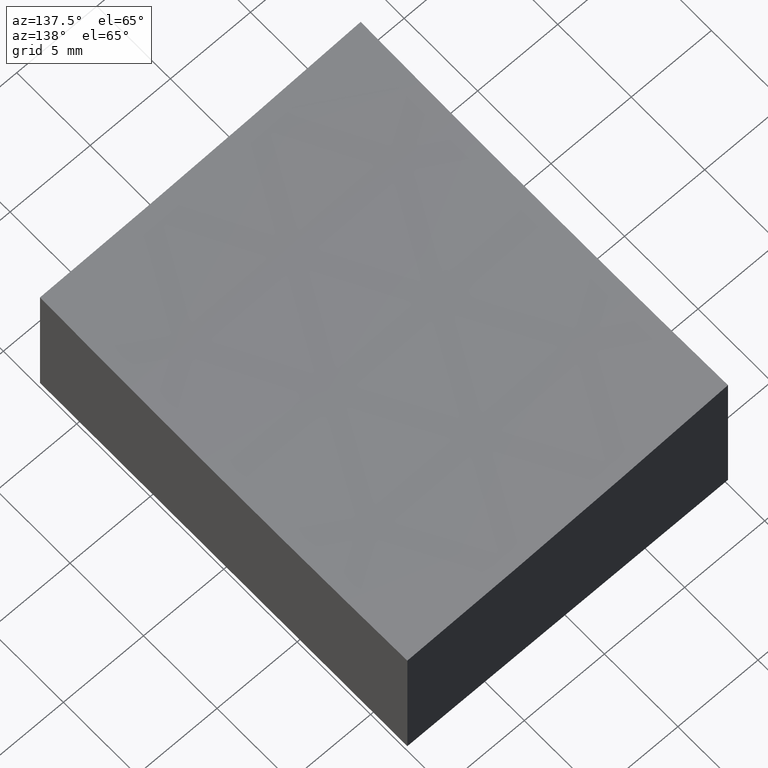
[diagram: clean part render]
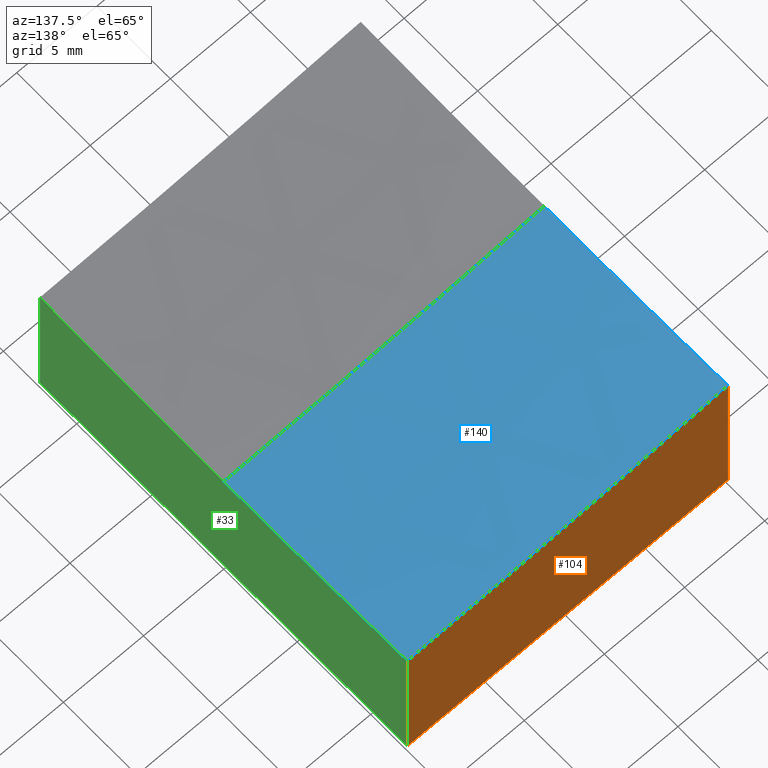
[diagram: same view with three faces highlighted in distinct colors, each labeled with its STEP entity id]
A machine part, auxiliary view with three faces highlighted in distinct colors.
Their STEP definitions:

[orange] entity #104 — the highlighted planar face has unit normal (0, -1, 0).
#6 = DIRECTION ( 'NONE',  ( 1.734723475976807094E-16, -1.000000000000000000, 0.000000000000000000 ) ) ;
#21 = CARTESIAN_POINT ( 'NONE',  ( -9.999999999999998224, 12.49999999999999645, -10.00000000000000000 ) ) ;
#23 = PLANE ( 'NONE',  #55 ) ;
#34 = VECTOR ( 'NONE', #243, 1000.000000000000000 ) ;
#38 = ORIENTED_EDGE ( 'NONE', *, *, #258, .F. ) ;
#42 = VERTEX_POINT ( 'NONE', #220 ) ;
#47 = CARTESIAN_POINT ( 'NONE',  ( 10.00000000000000178, 12.50000000000000000, 10.00000000000000000 ) ) ;
#55 = AXIS2_PLACEMENT_3D ( 'NONE', #47, #6, #69 ) ;
#58 = VERTEX_POINT ( 'NONE', #21 ) ;
#60 = VERTEX_POINT ( 'NONE', #107 ) ;
#67 = LINE ( 'NONE', #158, #34 ) ;
#69 = DIRECTION ( 'NONE',  ( 1.000000000000000000, 1.734723475976807094E-16, 0.000000000000000000 ) ) ;
#70 = EDGE_CURVE ( 'NONE', #60, #151, #90, .T. ) ;
#75 = CARTESIAN_POINT ( 'NONE',  ( 15.00000000000003730, 12.50000000000000178, 299.0000000000000000 ) ) ;
#80 = CIRCLE ( 'NONE', #193, 299.7394702070449171 ) ;
#90 = LINE ( 'NONE', #153, #115 ) ;
#95 = LINE ( 'NONE', #229, #144 ) ;
#104 = ADVANCED_FACE ( 'NONE', ( #177 ), #23, .F. ) ;
#107 = CARTESIAN_POINT ( 'NONE',  ( 10.00000000000000178, 12.50000000000000000, -0.6977644227597612492 ) ) ;
#108 = DIRECTION ( 'NONE',  ( -1.000000000000000000, -1.734723475976807094E-16, 0.000000000000000000 ) ) ;
#111 = DIRECTION ( 'NONE',  ( 1.734723475976807094E-16, -1.000000000000000000, 0.000000000000000000 ) ) ;
#115 = VECTOR ( 'NONE', #239, 1000.000000000000000 ) ;
#138 = DIRECTION ( 'NONE',  ( 1.000000000000000000, 1.736231275892908730E-16, 0.000000000000000000 ) ) ;
#144 = VECTOR ( 'NONE', #108, 1000.000000000000000 ) ;
#151 = VERTEX_POINT ( 'NONE', #224 ) ;
#153 = CARTESIAN_POINT ( 'NONE',  ( 10.00000000000000178, 12.50000000000000000, 10.00000000000000000 ) ) ;
#158 = CARTESIAN_POINT ( 'NONE',  ( -9.999999999999998224, 12.49999999999999645, 10.00000000000000000 ) ) ;
#175 = ORIENTED_EDGE ( 'NONE', *, *, #211, .T. ) ;
#177 = FACE_OUTER_BOUND ( 'NONE', #274, .T. ) ;
#192 = EDGE_CURVE ( 'NONE', #42, #60, #80, .T. ) ;
#193 = AXIS2_PLACEMENT_3D ( 'NONE', #75, #111, #138 ) ;
#211 = EDGE_CURVE ( 'NONE', #151, #58, #95, .T. ) ;
#220 = CARTESIAN_POINT ( 'NONE',  ( -9.999999999999998224, 12.49999999999999645, 0.3049213662870142727 ) ) ;
#224 = CARTESIAN_POINT ( 'NONE',  ( 10.00000000000000178, 12.50000000000000000, -10.00000000000000000 ) ) ;
#229 = CARTESIAN_POINT ( 'NONE',  ( 10.00000000000000178, 12.50000000000000000, -10.00000000000000000 ) ) ;
#239 = DIRECTION ( 'NONE',  ( -0.000000000000000000, -0.000000000000000000, -1.000000000000000000 ) ) ;
#243 = DIRECTION ( 'NONE',  ( -0.000000000000000000, -0.000000000000000000, -1.000000000000000000 ) ) ;
#258 = EDGE_CURVE ( 'NONE', #42, #58, #67, .T. ) ;
#259 = ORIENTED_EDGE ( 'NONE', *, *, #192, .T. ) ;
#274 = EDGE_LOOP ( 'NONE', ( #38, #259, #276, #175 ) ) ;
#276 = ORIENTED_EDGE ( 'NONE', *, *, #70, .T. ) ;

[blue] entity #140 — the highlighted spherical surface has radius 300 mm.
#9 = VERTEX_POINT ( 'NONE', #179 ) ;
#36 = ORIENTED_EDGE ( 'NONE', *, *, #192, .F. ) ;
#42 = VERTEX_POINT ( 'NONE', #220 ) ;
#43 = CARTESIAN_POINT ( 'NONE',  ( 15.00000000000003908, 0.000000000000000000, 299.0000000000000000 ) ) ;
#59 = CIRCLE ( 'NONE', #238, 300.0000000000000000 ) ;
#60 = VERTEX_POINT ( 'NONE', #107 ) ;
#68 = AXIS2_PLACEMENT_3D ( 'NONE', #142, #77, #228 ) ;
#73 = DIRECTION ( 'NONE',  ( 0.000000000000000000, 0.000000000000000000, 1.000000000000000000 ) ) ;
#75 = CARTESIAN_POINT ( 'NONE',  ( 15.00000000000003730, 12.50000000000000178, 299.0000000000000000 ) ) ;
#77 = DIRECTION ( 'NONE',  ( 0.000000000000000000, 1.000000000000000000, -0.000000000000000000 ) ) ;
#80 = CIRCLE ( 'NONE', #193, 299.7394702070449171 ) ;
#83 = ORIENTED_EDGE ( 'NONE', *, *, #119, .F. ) ;
#98 = CARTESIAN_POINT ( 'NONE',  ( -9.999999999999996447, 0.000000000000000000, 299.0000000000000000 ) ) ;
#107 = CARTESIAN_POINT ( 'NONE',  ( 10.00000000000000178, 12.50000000000000000, -0.6977644227597612492 ) ) ;
#111 = DIRECTION ( 'NONE',  ( 1.734723475976807094E-16, -1.000000000000000000, 0.000000000000000000 ) ) ;
#119 = EDGE_CURVE ( 'NONE', #60, #225, #277, .T. ) ;
#121 = AXIS2_PLACEMENT_3D ( 'NONE', #159, #185, #73 ) ;
#131 = DIRECTION ( 'NONE',  ( 0.000000000000000000, -1.000000000000000000, 0.000000000000000000 ) ) ;
#135 = DIRECTION ( 'NONE',  ( 0.000000000000000000, 0.000000000000000000, -1.000000000000000000 ) ) ;
#138 = DIRECTION ( 'NONE',  ( 1.000000000000000000, 1.736231275892908730E-16, 0.000000000000000000 ) ) ;
#140 = ADVANCED_FACE ( 'NONE', ( #268 ), #248, .F. ) ;
#142 = CARTESIAN_POINT ( 'NONE',  ( 15.00000000000003908, 0.000000000000000000, 299.0000000000000000 ) ) ;
#147 = CIRCLE ( 'NONE', #169, 298.9565185775349505 ) ;
#159 = CARTESIAN_POINT ( 'NONE',  ( 10.00000000000000178, 0.000000000000000000, 299.0000000000000000 ) ) ;
#161 = CARTESIAN_POINT ( 'NONE',  ( 10.00000000000000178, 0.000000000000000000, -0.9583304394129021908 ) ) ;
#162 = EDGE_LOOP ( 'NONE', ( #272, #213, #83, #36 ) ) ;
#169 = AXIS2_PLACEMENT_3D ( 'NONE', #98, #187, #263 ) ;
#179 = CARTESIAN_POINT ( 'NONE',  ( -9.999999999999996447, 0.000000000000000000, 0.04348142246501929264 ) ) ;
#185 = DIRECTION ( 'NONE',  ( -1.000000000000000000, 0.000000000000000000, 0.000000000000000000 ) ) ;
#187 = DIRECTION ( 'NONE',  ( 1.000000000000000000, 0.000000000000000000, 0.000000000000000000 ) ) ;
#192 = EDGE_CURVE ( 'NONE', #42, #60, #80, .T. ) ;
#193 = AXIS2_PLACEMENT_3D ( 'NONE', #75, #111, #138 ) ;
#213 = ORIENTED_EDGE ( 'NONE', *, *, #252, .T. ) ;
#220 = CARTESIAN_POINT ( 'NONE',  ( -9.999999999999998224, 12.49999999999999645, 0.3049213662870142727 ) ) ;
#225 = VERTEX_POINT ( 'NONE', #161 ) ;
#228 = DIRECTION ( 'NONE',  ( -1.000000000000000000, 0.000000000000000000, 0.000000000000000000 ) ) ;
#238 = AXIS2_PLACEMENT_3D ( 'NONE', #43, #131, #135 ) ;
#248 = SPHERICAL_SURFACE ( 'NONE', #68, 300.0000000000000000 ) ;
#252 = EDGE_CURVE ( 'NONE', #9, #225, #59, .T. ) ;
#256 = EDGE_CURVE ( 'NONE', #9, #42, #147, .T. ) ;
#263 = DIRECTION ( 'NONE',  ( 0.000000000000000000, 0.000000000000000000, -1.000000000000000000 ) ) ;
#268 = FACE_OUTER_BOUND ( 'NONE', #162, .T. ) ;
#272 = ORIENTED_EDGE ( 'NONE', *, *, #256, .F. ) ;
#277 = CIRCLE ( 'NONE', #121, 299.9583304394128618 ) ;

[green] entity #33 — the highlighted planar face has unit normal (-1, 0, 0).
#26 = ORIENTED_EDGE ( 'NONE', *, *, #39, .T. ) ;
#33 = ADVANCED_FACE ( 'NONE', ( #129 ), #194, .F. ) ;
#39 = EDGE_CURVE ( 'NONE', #247, #128, #130, .T. ) ;
#49 = LINE ( 'NONE', #96, #271 ) ;
#50 = AXIS2_PLACEMENT_3D ( 'NONE', #261, #240, #105 ) ;
#56 = ORIENTED_EDGE ( 'NONE', *, *, #88, .T. ) ;
#60 = VERTEX_POINT ( 'NONE', #107 ) ;
#62 = EDGE_CURVE ( 'NONE', #128, #151, #49, .T. ) ;
#63 = CARTESIAN_POINT ( 'NONE',  ( 10.00000000000000178, -12.50000000000000000, 10.00000000000000000 ) ) ;
#70 = EDGE_CURVE ( 'NONE', #60, #151, #90, .T. ) ;
#73 = DIRECTION ( 'NONE',  ( 0.000000000000000000, 0.000000000000000000, 1.000000000000000000 ) ) ;
#81 = AXIS2_PLACEMENT_3D ( 'NONE', #218, #222, #266 ) ;
#88 = EDGE_CURVE ( 'NONE', #225, #247, #209, .T. ) ;
#89 = DIRECTION ( 'NONE',  ( -0.000000000000000000, -0.000000000000000000, -1.000000000000000000 ) ) ;
#90 = LINE ( 'NONE', #153, #115 ) ;
#91 = CARTESIAN_POINT ( 'NONE',  ( 10.00000000000000178, -12.50000000000000000, -0.6977644227598167603 ) ) ;
#96 = CARTESIAN_POINT ( 'NONE',  ( 10.00000000000000178, -12.50000000000000000, -10.00000000000000000 ) ) ;
#105 = DIRECTION ( 'NONE',  ( 0.000000000000000000, 0.000000000000000000, 1.000000000000000000 ) ) ;
#107 = CARTESIAN_POINT ( 'NONE',  ( 10.00000000000000178, 12.50000000000000000, -0.6977644227597612492 ) ) ;
#115 = VECTOR ( 'NONE', #239, 1000.000000000000000 ) ;
#119 = EDGE_CURVE ( 'NONE', #60, #225, #277, .T. ) ;
#121 = AXIS2_PLACEMENT_3D ( 'NONE', #159, #185, #73 ) ;
#122 = ORIENTED_EDGE ( 'NONE', *, *, #119, .T. ) ;
#128 = VERTEX_POINT ( 'NONE', #221 ) ;
#129 = FACE_OUTER_BOUND ( 'NONE', #257, .T. ) ;
#130 = LINE ( 'NONE', #63, #234 ) ;
#150 = ORIENTED_EDGE ( 'NONE', *, *, #62, .T. ) ;
#151 = VERTEX_POINT ( 'NONE', #224 ) ;
#153 = CARTESIAN_POINT ( 'NONE',  ( 10.00000000000000178, 12.50000000000000000, 10.00000000000000000 ) ) ;
#159 = CARTESIAN_POINT ( 'NONE',  ( 10.00000000000000178, 0.000000000000000000, 299.0000000000000000 ) ) ;
#161 = CARTESIAN_POINT ( 'NONE',  ( 10.00000000000000178, 0.000000000000000000, -0.9583304394129021908 ) ) ;
#185 = DIRECTION ( 'NONE',  ( -1.000000000000000000, 0.000000000000000000, 0.000000000000000000 ) ) ;
#194 = PLANE ( 'NONE',  #50 ) ;
#199 = DIRECTION ( 'NONE',  ( 0.000000000000000000, 1.000000000000000000, 0.000000000000000000 ) ) ;
#209 = CIRCLE ( 'NONE', #81, 299.9583304394128618 ) ;
#218 = CARTESIAN_POINT ( 'NONE',  ( 10.00000000000000178, 0.000000000000000000, 299.0000000000000000 ) ) ;
#221 = CARTESIAN_POINT ( 'NONE',  ( 10.00000000000000178, -12.50000000000000000, -10.00000000000000000 ) ) ;
#222 = DIRECTION ( 'NONE',  ( -1.000000000000000000, 0.000000000000000000, 0.000000000000000000 ) ) ;
#224 = CARTESIAN_POINT ( 'NONE',  ( 10.00000000000000178, 12.50000000000000000, -10.00000000000000000 ) ) ;
#225 = VERTEX_POINT ( 'NONE', #161 ) ;
#234 = VECTOR ( 'NONE', #89, 1000.000000000000000 ) ;
#237 = ORIENTED_EDGE ( 'NONE', *, *, #70, .F. ) ;
#239 = DIRECTION ( 'NONE',  ( -0.000000000000000000, -0.000000000000000000, -1.000000000000000000 ) ) ;
#240 = DIRECTION ( 'NONE',  ( -1.000000000000000000, 0.000000000000000000, 0.000000000000000000 ) ) ;
#247 = VERTEX_POINT ( 'NONE', #91 ) ;
#257 = EDGE_LOOP ( 'NONE', ( #237, #122, #56, #26, #150 ) ) ;
#261 = CARTESIAN_POINT ( 'NONE',  ( 10.00000000000000178, -12.50000000000000000, 10.00000000000000000 ) ) ;
#266 = DIRECTION ( 'NONE',  ( 0.000000000000000000, 0.000000000000000000, 1.000000000000000000 ) ) ;
#271 = VECTOR ( 'NONE', #199, 1000.000000000000000 ) ;
#277 = CIRCLE ( 'NONE', #121, 299.9583304394128618 ) ;